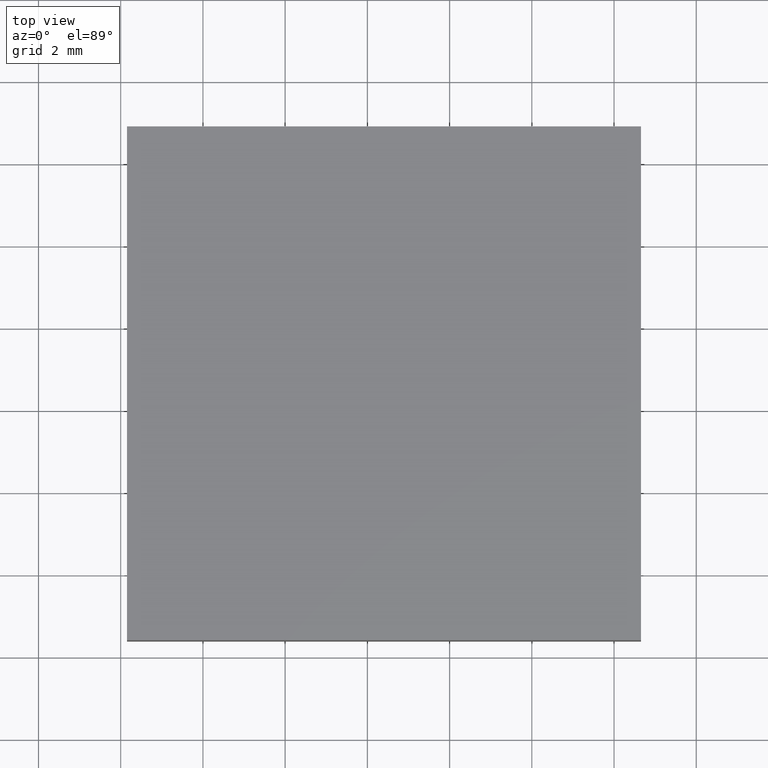
[diagram: clean part render]
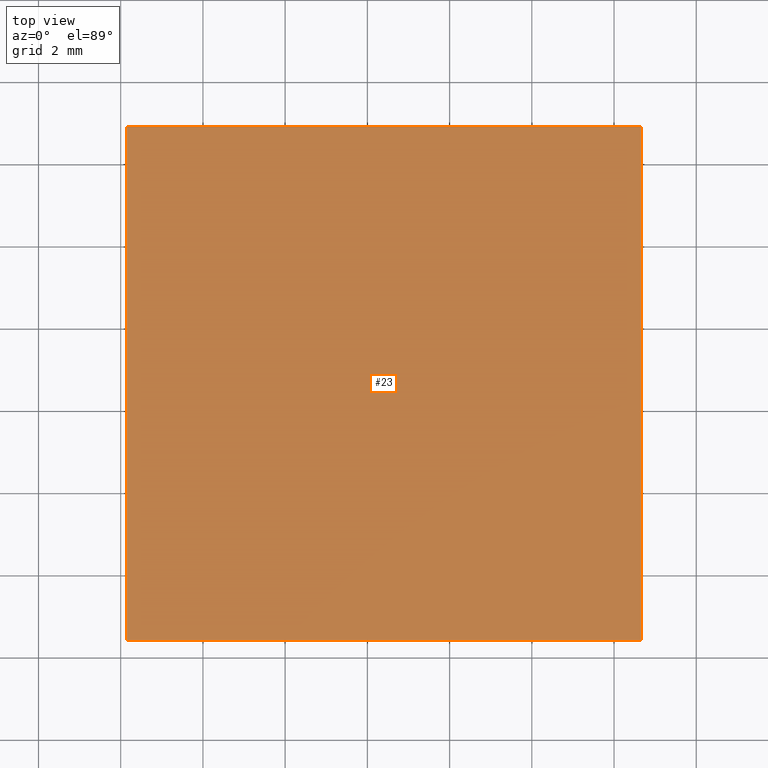
[diagram: same view with one face highlighted and labeled with its STEP entity id]
A machine part, top view. The second image highlights one B-rep face of the part: STEP entity #23.
In plain terms, the highlighted planar face has unit normal (0, 0, -1).
Its self-contained STEP definition (entity closure, byte-faithful):
#5 = ORIENTED_EDGE ( 'NONE', *, *, #198, .T. ) ;
#7 = VECTOR ( 'NONE', #50, 1000.000000000000000 ) ;
#8 = VERTEX_POINT ( 'NONE', #149 ) ;
#10 = EDGE_LOOP ( 'NONE', ( #196, #172, #161, #5 ) ) ;
#11 = EDGE_CURVE ( 'NONE', #33, #66, #171, .T. ) ;
#14 = PLANE ( 'NONE',  #37 ) ;
#15 = CARTESIAN_POINT ( 'NONE',  ( 116.6543858644214900, 44.89658967450770900, 2.000000000000000000 ) ) ;
#23 = ADVANCED_FACE ( 'NONE', ( #157 ), #14, .F. ) ;
#26 = EDGE_CURVE ( 'NONE', #60, #8, #41, .T. ) ;
#30 = DIRECTION ( 'NONE',  ( -0.0000000000000000000, 1.000000000000000000, -0.0000000000000000000 ) ) ;
#33 = VERTEX_POINT ( 'NONE', #48 ) ;
#37 = AXIS2_PLACEMENT_3D ( 'NONE', #179, #142, #129 ) ;
#41 = LINE ( 'NONE', #47, #195 ) ;
#45 = CARTESIAN_POINT ( 'NONE',  ( 116.6543858644214900, 44.89658967450770900, 2.000000000000000000 ) ) ;
#47 = CARTESIAN_POINT ( 'NONE',  ( 104.1543858644214700, 32.39658967450770900, 2.000000000000000000 ) ) ;
#48 = CARTESIAN_POINT ( 'NONE',  ( 116.6543858644214900, 32.39658967450770900, 2.000000000000000000 ) ) ;
#50 = DIRECTION ( 'NONE',  ( -1.000000000000000000, -0.0000000000000000000, -0.0000000000000000000 ) ) ;
#59 = EDGE_CURVE ( 'NONE', #8, #33, #107, .T. ) ;
#60 = VERTEX_POINT ( 'NONE', #202 ) ;
#66 = VERTEX_POINT ( 'NONE', #45 ) ;
#95 = DIRECTION ( 'NONE',  ( -0.0000000000000000000, -1.000000000000000000, -0.0000000000000000000 ) ) ;
#97 = DIRECTION ( 'NONE',  ( 1.000000000000000000, -0.0000000000000000000, -0.0000000000000000000 ) ) ;
#107 = LINE ( 'NONE', #112, #176 ) ;
#112 = CARTESIAN_POINT ( 'NONE',  ( 116.6543858644214900, 32.39658967450770900, 2.000000000000000000 ) ) ;
#129 = DIRECTION ( 'NONE',  ( -1.000000000000000000, 0.0000000000000000000, -0.0000000000000000000 ) ) ;
#142 = DIRECTION ( 'NONE',  ( 0.0000000000000000000, 0.0000000000000000000, -1.000000000000000000 ) ) ;
#149 = CARTESIAN_POINT ( 'NONE',  ( 104.1543858644214700, 32.39658967450770900, 2.000000000000000000 ) ) ;
#157 = FACE_OUTER_BOUND ( 'NONE', #10, .T. ) ;
#161 = ORIENTED_EDGE ( 'NONE', *, *, #11, .T. ) ;
#168 = VECTOR ( 'NONE', #30, 1000.000000000000000 ) ;
#171 = LINE ( 'NONE', #15, #168 ) ;
#172 = ORIENTED_EDGE ( 'NONE', *, *, #59, .T. ) ;
#176 = VECTOR ( 'NONE', #97, 1000.000000000000000 ) ;
#179 = CARTESIAN_POINT ( 'NONE',  ( 0.0000000000000000000, 0.0000000000000000000, 2.000000000000000000 ) ) ;
#189 = CARTESIAN_POINT ( 'NONE',  ( 104.1543858644214700, 44.89658967450770900, 2.000000000000000000 ) ) ;
#195 = VECTOR ( 'NONE', #95, 1000.000000000000000 ) ;
#196 = ORIENTED_EDGE ( 'NONE', *, *, #26, .T. ) ;
#198 = EDGE_CURVE ( 'NONE', #66, #60, #199, .T. ) ;
#199 = LINE ( 'NONE', #189, #7 ) ;
#202 = CARTESIAN_POINT ( 'NONE',  ( 104.1543858644214700, 44.89658967450770900, 2.000000000000000000 ) ) ;